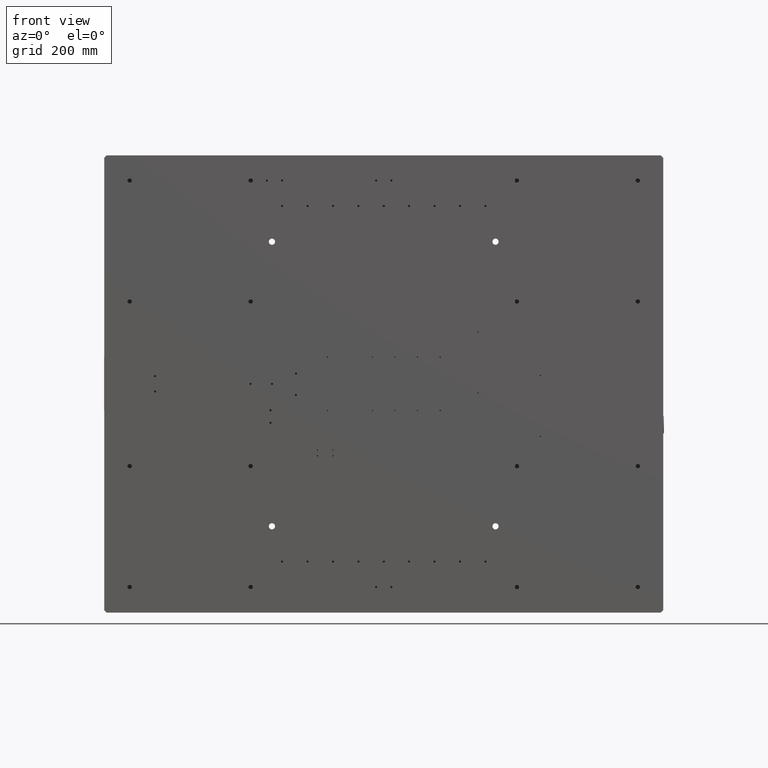
[diagram: clean part render]
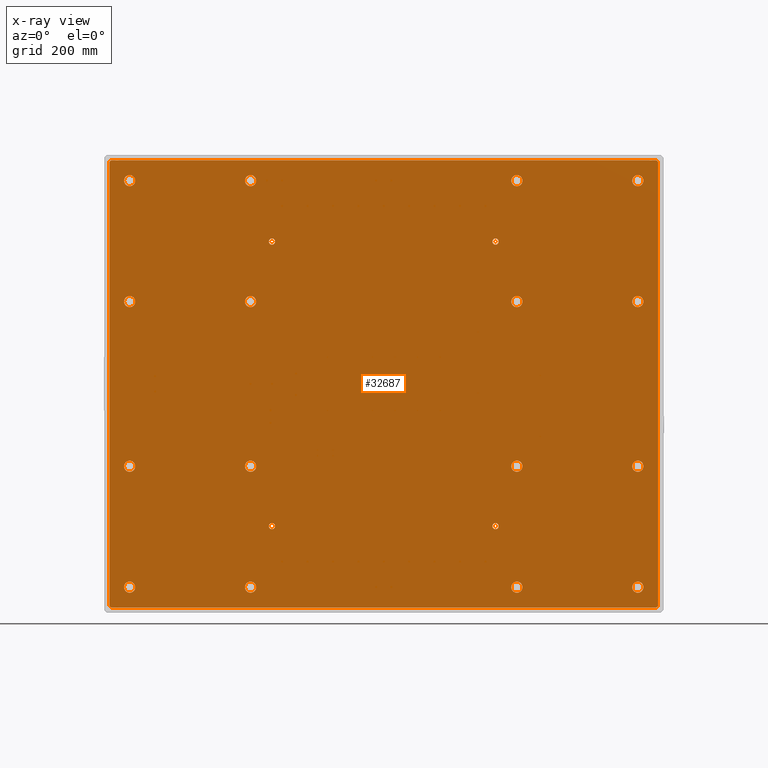
[diagram: x-ray — body ghosted, one internal face saturated and labeled with its STEP entity id]
A machine part, front view, then the same camera in x-ray: the body is ghosted and one INTERNAL B-rep face — a face not visible from any outside direction — is saturated and labeled: STEP entity #32687.
In plain terms, the highlighted planar face has unit normal (0, -1, 0).
Its self-contained STEP definition (entity closure, byte-faithful):
#68 = CARTESIAN_POINT ( 'NONE',  ( -698.3695244093422616, 283.9650746403642643, 414.4942352924385887 ) ) ;
#153 = VERTEX_POINT ( 'NONE', #24807 ) ;
#304 = EDGE_CURVE ( 'NONE', #5251, #5251, #17871, .T. ) ;
#351 = AXIS2_PLACEMENT_3D ( 'NONE', #32777, #9497, #48402 ) ;
#385 = CIRCLE ( 'NONE', #29817, 11.00000000000012079 ) ;
#889 = EDGE_CURVE ( 'NONE', #5769, #5769, #9241, .T. ) ;
#1268 = FACE_BOUND ( 'NONE', #48388, .T. ) ;
#1381 = VERTEX_POINT ( 'NONE', #20203 ) ;
#1983 = DIRECTION ( 'NONE',  ( 0.000000000000000000, 0.000000000000000000, 1.000000000000000000 ) ) ;
#2631 = CARTESIAN_POINT ( 'NONE',  ( 341.6304755906578521, 283.9650746403642643, 460.4942352924384750 ) ) ;
#2757 = EDGE_CURVE ( 'NONE', #21641, #8861, #38614, .T. ) ;
#2954 = VERTEX_POINT ( 'NONE', #7298 ) ;
#3282 = DIRECTION ( 'NONE',  ( 0.000000000000000000, -1.000000000000000000, 0.000000000000000000 ) ) ;
#3425 = ORIENTED_EDGE ( 'NONE', *, *, #6398, .F. ) ;
#3451 = DIRECTION ( 'NONE',  ( -0.000000000000000000, 1.000000000000000000, -0.000000000000000000 ) ) ;
#3549 = LINE ( 'NONE', #18918, #44264 ) ;
#4188 = AXIS2_PLACEMENT_3D ( 'NONE', #17928, #37620, #14079 ) ;
#4770 = DIRECTION ( 'NONE',  ( 1.000000000000000000, 0.000000000000000000, 0.000000000000000000 ) ) ;
#5078 = DIRECTION ( 'NONE',  ( 0.000000000000000000, 0.000000000000000000, 1.000000000000000000 ) ) ;
#5086 = FACE_BOUND ( 'NONE', #43926, .T. ) ;
#5146 = AXIS2_PLACEMENT_3D ( 'NONE', #21870, #6263, #45677 ) ;
#5251 = VERTEX_POINT ( 'NONE', #40848 ) ;
#5256 = AXIS2_PLACEMENT_3D ( 'NONE', #38317, #30619, #22186 ) ;
#5311 = CARTESIAN_POINT ( 'NONE',  ( -658.3695244093421479, 283.9650746403642643, 1011.494235292438589 ) ) ;
#5374 = EDGE_CURVE ( 'NONE', #12369, #12369, #44416, .T. ) ;
#5650 = EDGE_LOOP ( 'NONE', ( #33903 ) ) ;
#5698 = DIRECTION ( 'NONE',  ( 0.000000000000000000, 0.000000000000000000, 1.000000000000000000 ) ) ;
#5703 = CARTESIAN_POINT ( 'NONE',  ( -658.3695244093421479, 283.9650746403642643, 1022.494235292438702 ) ) ;
#5708 = AXIS2_PLACEMENT_3D ( 'NONE', #24810, #17654, #29654 ) ;
#5769 = VERTEX_POINT ( 'NONE', #17304 ) ;
#5783 = VERTEX_POINT ( 'NONE', #25001 ) ;
#6055 = CARTESIAN_POINT ( 'NONE',  ( -658.3695244093421479, 283.9650746403642643, 460.4942352924385887 ) ) ;
#6263 = DIRECTION ( 'NONE',  ( -0.000000000000000000, 1.000000000000000000, -0.000000000000000000 ) ) ;
#6302 = VERTEX_POINT ( 'NONE', #6055 ) ;
#6398 = EDGE_CURVE ( 'NONE', #42781, #1381, #8200, .T. ) ;
#6511 = LINE ( 'NONE', #11116, #29801 ) ;
#6531 = EDGE_LOOP ( 'NONE', ( #48895 ) ) ;
#6595 = CARTESIAN_POINT ( 'NONE',  ( -420.3695244093420911, 283.9650746403642643, 1249.494235292438589 ) ) ;
#7298 = CARTESIAN_POINT ( 'NONE',  ( 341.6304755906578521, 283.9650746403642643, 698.4942352924383613 ) ) ;
#7377 = DIRECTION ( 'NONE',  ( 0.000000000000000000, 0.000000000000000000, 1.000000000000000000 ) ) ;
#7568 = CIRCLE ( 'NONE', #18104, 5.000000000000004441 ) ;
#7718 = CARTESIAN_POINT ( 'NONE',  ( -658.3695244093421479, 283.9650746403642643, 687.4942352924384750 ) ) ;
#7735 = DIRECTION ( 'NONE',  ( -0.000000000000000000, 0.000000000000000000, 1.000000000000000000 ) ) ;
#7751 = ORIENTED_EDGE ( 'NONE', *, *, #26668, .T. ) ;
#7836 = DIRECTION ( 'NONE',  ( 0.000000000000000000, -1.000000000000000000, -0.000000000000000000 ) ) ;
#7891 = EDGE_LOOP ( 'NONE', ( #35172 ) ) ;
#7996 = DIRECTION ( 'NONE',  ( 0.000000000000000000, 0.000000000000000000, 1.000000000000000000 ) ) ;
#8114 = AXIS2_PLACEMENT_3D ( 'NONE', #32285, #46711, #15223 ) ;
#8200 = CIRCLE ( 'NONE', #37627, 4.999999999999893419 ) ;
#8300 = CARTESIAN_POINT ( 'NONE',  ( 103.6304755906578521, 283.9650746403642643, 687.4942352924384750 ) ) ;
#8367 = VERTEX_POINT ( 'NONE', #35494 ) ;
#8548 = CIRCLE ( 'NONE', #351, 11.00000000000012079 ) ;
#8578 = EDGE_CURVE ( 'NONE', #9308, #9308, #40139, .T. ) ;
#8779 = DIRECTION ( 'NONE',  ( 0.000000000000000000, -1.000000000000000000, 0.000000000000000000 ) ) ;
#8815 = VERTEX_POINT ( 'NONE', #27753 ) ;
#8861 = VERTEX_POINT ( 'NONE', #14755 ) ;
#8951 = FACE_BOUND ( 'NONE', #31843, .T. ) ;
#9241 = CIRCLE ( 'NONE', #19861, 6.249999999999977796 ) ;
#9308 = VERTEX_POINT ( 'NONE', #5703 ) ;
#9335 = CARTESIAN_POINT ( 'NONE',  ( 381.6304755906578521, 283.9650746403642643, 1284.494235292438589 ) ) ;
#9415 = EDGE_CURVE ( 'NONE', #45393, #45393, #8548, .T. ) ;
#9465 = FACE_BOUND ( 'NONE', #17145, .T. ) ;
#9497 = DIRECTION ( 'NONE',  ( 0.000000000000000000, -1.000000000000000000, 0.000000000000000000 ) ) ;
#9709 = DIRECTION ( 'NONE',  ( 0.000000000000000000, -1.000000000000000000, 0.000000000000000000 ) ) ;
#9720 = FACE_BOUND ( 'NONE', #24049, .T. ) ;
#9827 = CARTESIAN_POINT ( 'NONE',  ( -420.3695244093420911, 283.9650746403642643, 698.4942352924384750 ) ) ;
#10096 = DIRECTION ( 'NONE',  ( 0.000000000000000000, -1.000000000000000000, 0.000000000000000000 ) ) ;
#10670 = EDGE_LOOP ( 'NONE', ( #12330 ) ) ;
#10715 = AXIS2_PLACEMENT_3D ( 'NONE', #30532, #10096, #46174 ) ;
#10875 = ORIENTED_EDGE ( 'NONE', *, *, #18133, .T. ) ;
#11116 = CARTESIAN_POINT ( 'NONE',  ( -698.3695244093421479, 283.9650746403642643, 1299.494235292438589 ) ) ;
#11405 = ORIENTED_EDGE ( 'NONE', *, *, #17169, .F. ) ;
#12303 = DIRECTION ( 'NONE',  ( 0.000000000000000000, 0.000000000000000000, 1.000000000000000000 ) ) ;
#12330 = ORIENTED_EDGE ( 'NONE', *, *, #31333, .T. ) ;
#12369 = VERTEX_POINT ( 'NONE', #42861 ) ;
#12663 = ORIENTED_EDGE ( 'NONE', *, *, #5374, .F. ) ;
#12792 = FACE_BOUND ( 'NONE', #10670, .T. ) ;
#13214 = CARTESIAN_POINT ( 'NONE',  ( -693.3695244093421479, 283.9650746403642643, 1289.494235292438589 ) ) ;
#13298 = FACE_BOUND ( 'NONE', #25188, .T. ) ;
#13380 = CIRCLE ( 'NONE', #30493, 10.99999999999989875 ) ;
#13396 = CARTESIAN_POINT ( 'NONE',  ( 376.6304755906579658, 283.9650746403642643, 414.4942352924385887 ) ) ;
#13417 = CARTESIAN_POINT ( 'NONE',  ( -658.3695244093421479, 283.9650746403642643, 1249.494235292438589 ) ) ;
#13511 = ORIENTED_EDGE ( 'NONE', *, *, #8578, .T. ) ;
#13566 = DIRECTION ( 'NONE',  ( 0.000000000000000000, -1.000000000000000000, 0.000000000000000000 ) ) ;
#13679 = CARTESIAN_POINT ( 'NONE',  ( 103.6304755906578521, 283.9650746403642643, 1260.494235292438589 ) ) ;
#14079 = DIRECTION ( 'NONE',  ( 0.000000000000000000, 0.000000000000000000, 1.000000000000000000 ) ) ;
#14159 = CIRCLE ( 'NONE', #42769, 10.99999999999989875 ) ;
#14755 = CARTESIAN_POINT ( 'NONE',  ( 376.6304755906579658, 283.9650746403642643, 409.4942352924385318 ) ) ;
#14912 = VECTOR ( 'NONE', #4770, 1000.000000000000000 ) ;
#15072 = DIRECTION ( 'NONE',  ( -1.000000000000000000, -0.000000000000000000, -0.000000000000000000 ) ) ;
#15223 = DIRECTION ( 'NONE',  ( 0.000000000000000000, 0.000000000000000000, 1.000000000000000000 ) ) ;
#15479 = ORIENTED_EDGE ( 'NONE', *, *, #2757, .F. ) ;
#15738 = CIRCLE ( 'NONE', #37002, 10.99999999999989875 ) ;
#15976 = VERTEX_POINT ( 'NONE', #46971 ) ;
#15993 = EDGE_LOOP ( 'NONE', ( #21090 ) ) ;
#16103 = CIRCLE ( 'NONE', #49619, 11.00000000000001066 ) ;
#16439 = CIRCLE ( 'NONE', #4188, 11.00000000000012079 ) ;
#16635 = VECTOR ( 'NONE', #7735, 1000.000000000000000 ) ;
#16877 = ORIENTED_EDGE ( 'NONE', *, *, #44233, .F. ) ;
#16891 = FACE_OUTER_BOUND ( 'NONE', #45689, .T. ) ;
#17060 = AXIS2_PLACEMENT_3D ( 'NONE', #6595, #9709, #25070 ) ;
#17145 = EDGE_LOOP ( 'NONE', ( #10875 ) ) ;
#17169 = EDGE_CURVE ( 'NONE', #19607, #153, #21820, .T. ) ;
#17254 = EDGE_CURVE ( 'NONE', #6302, #6302, #16103, .T. ) ;
#17304 = CARTESIAN_POINT ( 'NONE',  ( -378.3695244093422616, 283.9650746403642643, 575.7442352924385887 ) ) ;
#17654 = DIRECTION ( 'NONE',  ( 0.000000000000000000, -1.000000000000000000, 0.000000000000000000 ) ) ;
#17662 = FACE_BOUND ( 'NONE', #29016, .T. ) ;
#17871 = CIRCLE ( 'NONE', #17060, 11.00000000000012079 ) ;
#17881 = EDGE_LOOP ( 'NONE', ( #31123 ) ) ;
#17928 = CARTESIAN_POINT ( 'NONE',  ( -420.3695244093420911, 283.9650746403642643, 1011.494235292438589 ) ) ;
#18104 = AXIS2_PLACEMENT_3D ( 'NONE', #19912, #28100, #23998 ) ;
#18133 = EDGE_CURVE ( 'NONE', #5783, #5783, #19977, .T. ) ;
#18511 = EDGE_CURVE ( 'NONE', #44452, #44452, #41161, .T. ) ;
#18918 = CARTESIAN_POINT ( 'NONE',  ( -708.3695244093421479, 283.9650746403642643, 1289.494235292438589 ) ) ;
#18981 = DIRECTION ( 'NONE',  ( 0.000000000000000000, 0.000000000000000000, 1.000000000000000000 ) ) ;
#19012 = CARTESIAN_POINT ( 'NONE',  ( 381.6304755906578521, 283.9650746403642643, 1299.494235292438589 ) ) ;
#19214 = EDGE_LOOP ( 'NONE', ( #39587 ) ) ;
#19292 = CIRCLE ( 'NONE', #40532, 5.000000000000004441 ) ;
#19441 = ORIENTED_EDGE ( 'NONE', *, *, #9415, .T. ) ;
#19524 = DIRECTION ( 'NONE',  ( -0.000000000000000000, -1.000000000000000000, -0.000000000000000000 ) ) ;
#19607 = VERTEX_POINT ( 'NONE', #9335 ) ;
#19861 = AXIS2_PLACEMENT_3D ( 'NONE', #30088, #3451, #37776 ) ;
#19912 = CARTESIAN_POINT ( 'NONE',  ( -693.3695244093422616, 283.9650746403642643, 414.4942352924385887 ) ) ;
#19977 = CIRCLE ( 'NONE', #45364, 10.99999999999989875 ) ;
#20203 = CARTESIAN_POINT ( 'NONE',  ( -698.3695244093421479, 283.9650746403642643, 1284.494235292438361 ) ) ;
#20937 = DIRECTION ( 'NONE',  ( 0.000000000000000000, -1.000000000000000000, 0.000000000000000000 ) ) ;
#20974 = FACE_BOUND ( 'NONE', #42116, .T. ) ;
#21090 = ORIENTED_EDGE ( 'NONE', *, *, #34007, .T. ) ;
#21108 = ORIENTED_EDGE ( 'NONE', *, *, #49390, .T. ) ;
#21223 = FACE_BOUND ( 'NONE', #15993, .T. ) ;
#21641 = VERTEX_POINT ( 'NONE', #42594 ) ;
#21820 = CIRCLE ( 'NONE', #35725, 4.999999999999893419 ) ;
#21837 = CARTESIAN_POINT ( 'NONE',  ( 103.6304755906578521, 283.9650746403642643, 1022.494235292438702 ) ) ;
#21870 = CARTESIAN_POINT ( 'NONE',  ( 61.63047559065781655, 283.9650746403642643, 569.4942352924384750 ) ) ;
#22085 = DIRECTION ( 'NONE',  ( 0.000000000000000000, -1.000000000000000000, 0.000000000000000000 ) ) ;
#22186 = DIRECTION ( 'NONE',  ( 0.000000000000000000, 0.000000000000000000, 1.000000000000000000 ) ) ;
#22592 = VERTEX_POINT ( 'NONE', #2631 ) ;
#22673 = ORIENTED_EDGE ( 'NONE', *, *, #30899, .F. ) ;
#23998 = DIRECTION ( 'NONE',  ( 0.000000000000000000, 0.000000000000000000, 1.000000000000000000 ) ) ;
#24049 = EDGE_LOOP ( 'NONE', ( #44082 ) ) ;
#24234 = CARTESIAN_POINT ( 'NONE',  ( -420.3695244093420911, 283.9650746403642643, 460.4942352924385887 ) ) ;
#24544 = DIRECTION ( 'NONE',  ( 0.000000000000000000, -1.000000000000000000, 0.000000000000000000 ) ) ;
#24635 = CARTESIAN_POINT ( 'NONE',  ( 341.6304755906578521, 283.9650746403642643, 1249.494235292438589 ) ) ;
#24807 = CARTESIAN_POINT ( 'NONE',  ( 376.6304755906579658, 283.9650746403642643, 1289.494235292438589 ) ) ;
#24810 = CARTESIAN_POINT ( 'NONE',  ( -420.3695244093420911, 283.9650746403642643, 449.4942352924385887 ) ) ;
#25001 = CARTESIAN_POINT ( 'NONE',  ( 341.6304755906578521, 283.9650746403642643, 1260.494235292438361 ) ) ;
#25070 = DIRECTION ( 'NONE',  ( 0.000000000000000000, 0.000000000000000000, 1.000000000000000000 ) ) ;
#25072 = CARTESIAN_POINT ( 'NONE',  ( 341.6304755906578521, 283.9650746403642643, 687.4942352924384750 ) ) ;
#25084 = FACE_BOUND ( 'NONE', #31416, .T. ) ;
#25173 = DIRECTION ( 'NONE',  ( -0.000000000000000000, -1.000000000000000000, -0.000000000000000000 ) ) ;
#25188 = EDGE_LOOP ( 'NONE', ( #21108 ) ) ;
#25339 = FACE_BOUND ( 'NONE', #6531, .T. ) ;
#25450 = CARTESIAN_POINT ( 'NONE',  ( 381.6304755906578521, 283.9650746403642643, 414.4942352924385887 ) ) ;
#25827 = EDGE_LOOP ( 'NONE', ( #34310 ) ) ;
#26097 = ORIENTED_EDGE ( 'NONE', *, *, #37324, .F. ) ;
#26432 = EDGE_LOOP ( 'NONE', ( #43040 ) ) ;
#26668 = EDGE_CURVE ( 'NONE', #44899, #44899, #40950, .T. ) ;
#26796 = CARTESIAN_POINT ( 'NONE',  ( -693.3695244093421479, 283.9650746403642643, 1284.494235292438361 ) ) ;
#27423 = CARTESIAN_POINT ( 'NONE',  ( 61.63047559065781655, 283.9650746403642643, 1129.494235292438589 ) ) ;
#27753 = CARTESIAN_POINT ( 'NONE',  ( 103.6304755906578521, 283.9650746403642643, 698.4942352924384750 ) ) ;
#27846 = DIRECTION ( 'NONE',  ( 0.000000000000000000, 0.000000000000000000, 1.000000000000000000 ) ) ;
#27929 = EDGE_CURVE ( 'NONE', #41311, #41311, #16439, .T. ) ;
#27940 = CARTESIAN_POINT ( 'NONE',  ( -658.3695244093421479, 283.9650746403642643, 698.4942352924384750 ) ) ;
#27966 = DIRECTION ( 'NONE',  ( 0.000000000000000000, 0.000000000000000000, 1.000000000000000000 ) ) ;
#28093 = EDGE_CURVE ( 'NONE', #153, #42781, #3549, .T. ) ;
#28100 = DIRECTION ( 'NONE',  ( 0.000000000000000000, -1.000000000000000000, -0.000000000000000000 ) ) ;
#28500 = CARTESIAN_POINT ( 'NONE',  ( 103.6304755906578521, 283.9650746403642643, 460.4942352924385887 ) ) ;
#28903 = FACE_BOUND ( 'NONE', #40310, .T. ) ;
#29016 = EDGE_LOOP ( 'NONE', ( #40856 ) ) ;
#29654 = DIRECTION ( 'NONE',  ( 0.000000000000000000, 0.000000000000000000, 1.000000000000000000 ) ) ;
#29660 = EDGE_CURVE ( 'NONE', #46589, #21641, #7568, .T. ) ;
#29778 = CIRCLE ( 'NONE', #5256, 10.99999999999989875 ) ;
#29801 = VECTOR ( 'NONE', #37999, 1000.000000000000000 ) ;
#29817 = AXIS2_PLACEMENT_3D ( 'NONE', #43572, #39983, #7996 ) ;
#30088 = CARTESIAN_POINT ( 'NONE',  ( -378.3695244093422616, 283.9650746403642643, 569.4942352924385887 ) ) ;
#30429 = DIRECTION ( 'NONE',  ( 0.000000000000000000, -1.000000000000000000, 0.000000000000000000 ) ) ;
#30493 = AXIS2_PLACEMENT_3D ( 'NONE', #25072, #24544, #5078 ) ;
#30532 = CARTESIAN_POINT ( 'NONE',  ( -420.3695244093420911, 283.9650746403642643, 687.4942352924384750 ) ) ;
#30619 = DIRECTION ( 'NONE',  ( 0.000000000000000000, -1.000000000000000000, 0.000000000000000000 ) ) ;
#30899 = EDGE_CURVE ( 'NONE', #8861, #38042, #19292, .T. ) ;
#31037 = DIRECTION ( 'NONE',  ( 0.000000000000000000, 0.000000000000000000, 1.000000000000000000 ) ) ;
#31123 = ORIENTED_EDGE ( 'NONE', *, *, #18511, .F. ) ;
#31333 = EDGE_CURVE ( 'NONE', #47398, #47398, #38920, .T. ) ;
#31416 = EDGE_LOOP ( 'NONE', ( #7751 ) ) ;
#31613 = DIRECTION ( 'NONE',  ( 0.000000000000000000, 0.000000000000000000, 1.000000000000000000 ) ) ;
#31843 = EDGE_LOOP ( 'NONE', ( #19441 ) ) ;
#32285 = CARTESIAN_POINT ( 'NONE',  ( -378.3695244093419774, 283.9650746403642643, 1129.494235292438589 ) ) ;
#32608 = VERTEX_POINT ( 'NONE', #13679 ) ;
#32687 = ADVANCED_FACE ( 'NONE', ( #25084, #33004, #48885, #12792, #25339, #32746, #17662, #5086, #48372, #48627, #13298, #1268, #9720, #21223, #9465, #8951, #28903, #40941, #20974, #40179, #16891 ), #37355, .F. ) ;
#32746 = FACE_BOUND ( 'NONE', #45841, .T. ) ;
#32777 = CARTESIAN_POINT ( 'NONE',  ( 103.6304755906578521, 283.9650746403642643, 1011.494235292438589 ) ) ;
#33004 = FACE_BOUND ( 'NONE', #5650, .T. ) ;
#33457 = CIRCLE ( 'NONE', #8114, 6.250000000000088818 ) ;
#33620 = VERTEX_POINT ( 'NONE', #28500 ) ;
#33903 = ORIENTED_EDGE ( 'NONE', *, *, #37932, .T. ) ;
#34007 = EDGE_CURVE ( 'NONE', #41688, #41688, #15738, .T. ) ;
#34310 = ORIENTED_EDGE ( 'NONE', *, *, #47936, .T. ) ;
#34962 = AXIS2_PLACEMENT_3D ( 'NONE', #44535, #13566, #40689 ) ;
#35172 = ORIENTED_EDGE ( 'NONE', *, *, #43868, .T. ) ;
#35494 = CARTESIAN_POINT ( 'NONE',  ( -378.3695244093419774, 283.9650746403642643, 1135.744235292438816 ) ) ;
#35725 = AXIS2_PLACEMENT_3D ( 'NONE', #50505, #19524, #31037 ) ;
#35772 = ORIENTED_EDGE ( 'NONE', *, *, #49812, .F. ) ;
#36016 = CARTESIAN_POINT ( 'NONE',  ( -708.3695244093421479, 283.9650746403642643, 409.4942352924385318 ) ) ;
#36249 = AXIS2_PLACEMENT_3D ( 'NONE', #27423, #38189, #18981 ) ;
#37002 = AXIS2_PLACEMENT_3D ( 'NONE', #42458, #3282, #7377 ) ;
#37056 = DIRECTION ( 'NONE',  ( 0.000000000000000000, -1.000000000000000000, 0.000000000000000000 ) ) ;
#37324 = EDGE_CURVE ( 'NONE', #8367, #8367, #33457, .T. ) ;
#37355 = PLANE ( 'NONE',  #34962 ) ;
#37620 = DIRECTION ( 'NONE',  ( 0.000000000000000000, -1.000000000000000000, 0.000000000000000000 ) ) ;
#37627 = AXIS2_PLACEMENT_3D ( 'NONE', #26796, #7836, #31613 ) ;
#37776 = DIRECTION ( 'NONE',  ( 0.000000000000000000, 0.000000000000000000, 1.000000000000000000 ) ) ;
#37932 = EDGE_CURVE ( 'NONE', #43694, #43694, #46566, .T. ) ;
#37999 = DIRECTION ( 'NONE',  ( 0.000000000000000000, -0.000000000000000000, -1.000000000000000000 ) ) ;
#38042 = VERTEX_POINT ( 'NONE', #25450 ) ;
#38189 = DIRECTION ( 'NONE',  ( -0.000000000000000000, 1.000000000000000000, -0.000000000000000000 ) ) ;
#38317 = CARTESIAN_POINT ( 'NONE',  ( 341.6304755906578521, 283.9650746403642643, 449.4942352924385887 ) ) ;
#38614 = LINE ( 'NONE', #36016, #14912 ) ;
#38920 = CIRCLE ( 'NONE', #44670, 11.00000000000001066 ) ;
#39550 = ORIENTED_EDGE ( 'NONE', *, *, #28093, .F. ) ;
#39587 = ORIENTED_EDGE ( 'NONE', *, *, #17254, .T. ) ;
#39891 = ORIENTED_EDGE ( 'NONE', *, *, #43266, .T. ) ;
#39983 = DIRECTION ( 'NONE',  ( 0.000000000000000000, -1.000000000000000000, 0.000000000000000000 ) ) ;
#40139 = CIRCLE ( 'NONE', #46668, 11.00000000000012079 ) ;
#40179 = FACE_BOUND ( 'NONE', #17881, .T. ) ;
#40310 = EDGE_LOOP ( 'NONE', ( #12663 ) ) ;
#40532 = AXIS2_PLACEMENT_3D ( 'NONE', #13396, #25173, #5698 ) ;
#40689 = DIRECTION ( 'NONE',  ( 0.000000000000000000, -0.000000000000000000, -1.000000000000000000 ) ) ;
#40847 = ORIENTED_EDGE ( 'NONE', *, *, #29660, .F. ) ;
#40848 = CARTESIAN_POINT ( 'NONE',  ( -420.3695244093420911, 283.9650746403642643, 1260.494235292438589 ) ) ;
#40856 = ORIENTED_EDGE ( 'NONE', *, *, #44053, .T. ) ;
#40941 = FACE_BOUND ( 'NONE', #26432, .T. ) ;
#40950 = CIRCLE ( 'NONE', #10715, 11.00000000000001066 ) ;
#41161 = CIRCLE ( 'NONE', #36249, 6.250000000000088818 ) ;
#41311 = VERTEX_POINT ( 'NONE', #49240 ) ;
#41315 = DIRECTION ( 'NONE',  ( 0.000000000000000000, 0.000000000000000000, 1.000000000000000000 ) ) ;
#41482 = DIRECTION ( 'NONE',  ( 0.000000000000000000, 0.000000000000000000, 1.000000000000000000 ) ) ;
#41688 = VERTEX_POINT ( 'NONE', #47663 ) ;
#42116 = EDGE_LOOP ( 'NONE', ( #26097 ) ) ;
#42458 = CARTESIAN_POINT ( 'NONE',  ( 341.6304755906578521, 283.9650746403642643, 1011.494235292438589 ) ) ;
#42479 = CARTESIAN_POINT ( 'NONE',  ( 103.6304755906578521, 283.9650746403642643, 449.4942352924385887 ) ) ;
#42594 = CARTESIAN_POINT ( 'NONE',  ( -693.3695244093422616, 283.9650746403642643, 409.4942352924385318 ) ) ;
#42769 = AXIS2_PLACEMENT_3D ( 'NONE', #13417, #22085, #41315 ) ;
#42781 = VERTEX_POINT ( 'NONE', #13214 ) ;
#42861 = CARTESIAN_POINT ( 'NONE',  ( 61.63047559065781655, 283.9650746403642643, 575.7442352924384750 ) ) ;
#43040 = ORIENTED_EDGE ( 'NONE', *, *, #889, .F. ) ;
#43137 = DIRECTION ( 'NONE',  ( 0.000000000000000000, 0.000000000000000000, 1.000000000000000000 ) ) ;
#43266 = EDGE_CURVE ( 'NONE', #2954, #2954, #13380, .T. ) ;
#43572 = CARTESIAN_POINT ( 'NONE',  ( 103.6304755906578521, 283.9650746403642643, 1249.494235292438589 ) ) ;
#43694 = VERTEX_POINT ( 'NONE', #24234 ) ;
#43868 = EDGE_CURVE ( 'NONE', #8815, #8815, #45230, .T. ) ;
#43926 = EDGE_LOOP ( 'NONE', ( #13511 ) ) ;
#44053 = EDGE_CURVE ( 'NONE', #15976, #15976, #14159, .T. ) ;
#44082 = ORIENTED_EDGE ( 'NONE', *, *, #45843, .T. ) ;
#44233 = EDGE_CURVE ( 'NONE', #38042, #19607, #49485, .T. ) ;
#44264 = VECTOR ( 'NONE', #15072, 1000.000000000000000 ) ;
#44416 = CIRCLE ( 'NONE', #5146, 6.249999999999977796 ) ;
#44452 = VERTEX_POINT ( 'NONE', #44969 ) ;
#44535 = CARTESIAN_POINT ( 'NONE',  ( -708.3695244093421479, 283.9650746403642643, 1299.494235292438589 ) ) ;
#44670 = AXIS2_PLACEMENT_3D ( 'NONE', #7718, #47382, #12303 ) ;
#44899 = VERTEX_POINT ( 'NONE', #9827 ) ;
#44969 = CARTESIAN_POINT ( 'NONE',  ( 61.63047559065781655, 283.9650746403642643, 1135.744235292438816 ) ) ;
#45230 = CIRCLE ( 'NONE', #48506, 11.00000000000001066 ) ;
#45364 = AXIS2_PLACEMENT_3D ( 'NONE', #24635, #8779, #27966 ) ;
#45393 = VERTEX_POINT ( 'NONE', #21837 ) ;
#45677 = DIRECTION ( 'NONE',  ( 0.000000000000000000, 0.000000000000000000, 1.000000000000000000 ) ) ;
#45689 = EDGE_LOOP ( 'NONE', ( #11405, #16877, #22673, #15479, #40847, #35772, #3425, #39550 ) ) ;
#45841 = EDGE_LOOP ( 'NONE', ( #46501 ) ) ;
#45843 = EDGE_CURVE ( 'NONE', #32608, #32608, #385, .T. ) ;
#46174 = DIRECTION ( 'NONE',  ( 0.000000000000000000, 0.000000000000000000, 1.000000000000000000 ) ) ;
#46285 = CIRCLE ( 'NONE', #50358, 11.00000000000001066 ) ;
#46501 = ORIENTED_EDGE ( 'NONE', *, *, #304, .T. ) ;
#46566 = CIRCLE ( 'NONE', #5708, 11.00000000000001066 ) ;
#46589 = VERTEX_POINT ( 'NONE', #68 ) ;
#46668 = AXIS2_PLACEMENT_3D ( 'NONE', #5311, #20937, #27846 ) ;
#46711 = DIRECTION ( 'NONE',  ( -0.000000000000000000, 1.000000000000000000, -0.000000000000000000 ) ) ;
#46971 = CARTESIAN_POINT ( 'NONE',  ( -658.3695244093421479, 283.9650746403642643, 1260.494235292438361 ) ) ;
#47382 = DIRECTION ( 'NONE',  ( 0.000000000000000000, -1.000000000000000000, 0.000000000000000000 ) ) ;
#47398 = VERTEX_POINT ( 'NONE', #27940 ) ;
#47663 = CARTESIAN_POINT ( 'NONE',  ( 341.6304755906578521, 283.9650746403642643, 1022.494235292438475 ) ) ;
#47936 = EDGE_CURVE ( 'NONE', #33620, #33620, #46285, .T. ) ;
#48226 = DIRECTION ( 'NONE',  ( 0.000000000000000000, -1.000000000000000000, 0.000000000000000000 ) ) ;
#48372 = FACE_BOUND ( 'NONE', #7891, .T. ) ;
#48388 = EDGE_LOOP ( 'NONE', ( #39891 ) ) ;
#48402 = DIRECTION ( 'NONE',  ( 0.000000000000000000, 0.000000000000000000, 1.000000000000000000 ) ) ;
#48506 = AXIS2_PLACEMENT_3D ( 'NONE', #8300, #48226, #43137 ) ;
#48581 = CARTESIAN_POINT ( 'NONE',  ( -658.3695244093421479, 283.9650746403642643, 449.4942352924385887 ) ) ;
#48627 = FACE_BOUND ( 'NONE', #25827, .T. ) ;
#48885 = FACE_BOUND ( 'NONE', #19214, .T. ) ;
#48895 = ORIENTED_EDGE ( 'NONE', *, *, #27929, .T. ) ;
#49240 = CARTESIAN_POINT ( 'NONE',  ( -420.3695244093420911, 283.9650746403642643, 1022.494235292438702 ) ) ;
#49390 = EDGE_CURVE ( 'NONE', #22592, #22592, #29778, .T. ) ;
#49485 = LINE ( 'NONE', #19012, #16635 ) ;
#49619 = AXIS2_PLACEMENT_3D ( 'NONE', #48581, #37056, #1983 ) ;
#49812 = EDGE_CURVE ( 'NONE', #1381, #46589, #6511, .T. ) ;
#50358 = AXIS2_PLACEMENT_3D ( 'NONE', #42479, #30429, #41482 ) ;
#50505 = CARTESIAN_POINT ( 'NONE',  ( 376.6304755906579658, 283.9650746403642643, 1284.494235292438589 ) ) ;